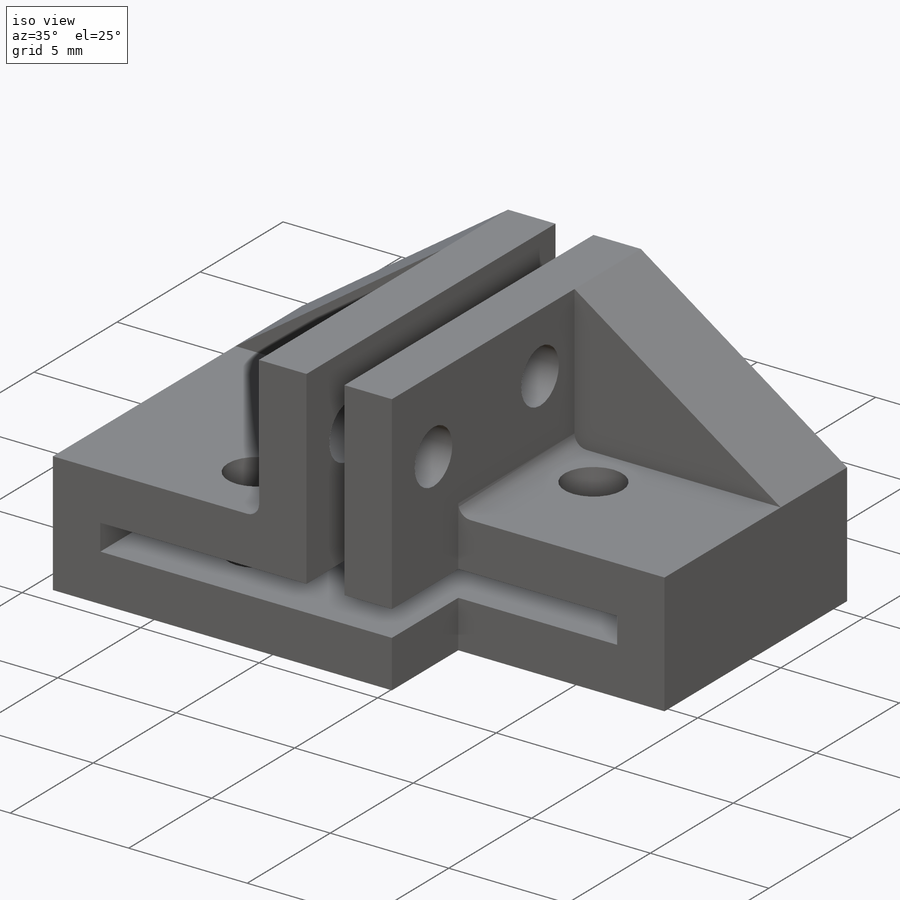
[diagram: iso view]
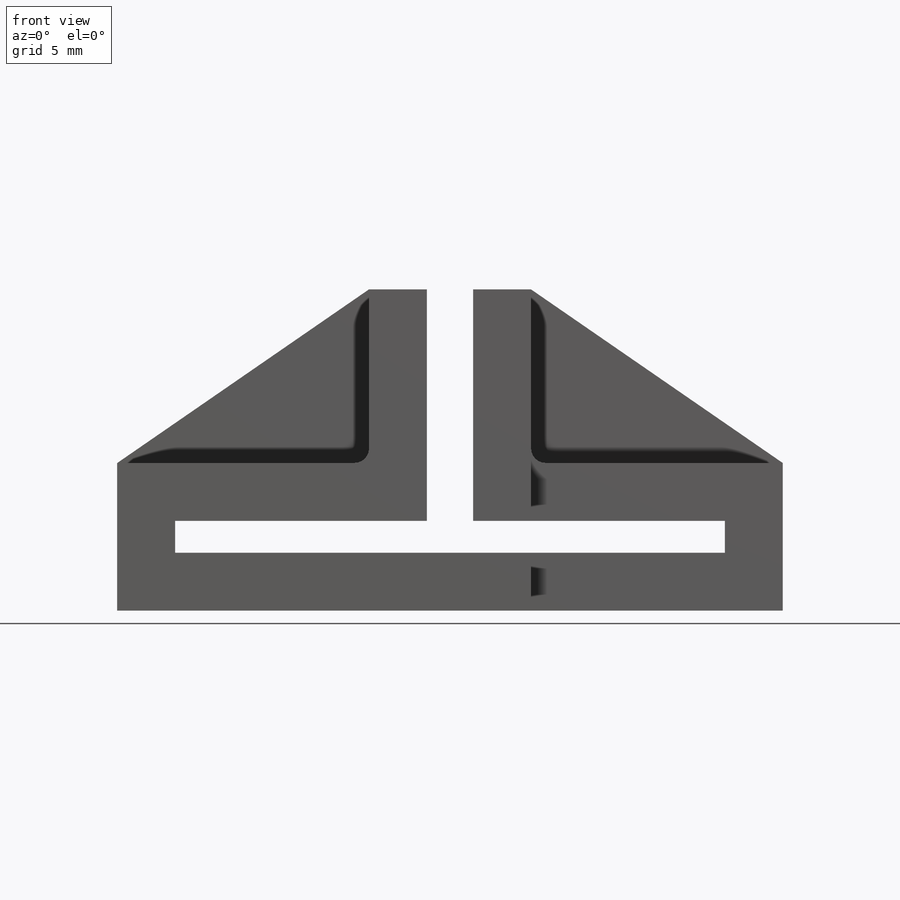
[diagram: front view]
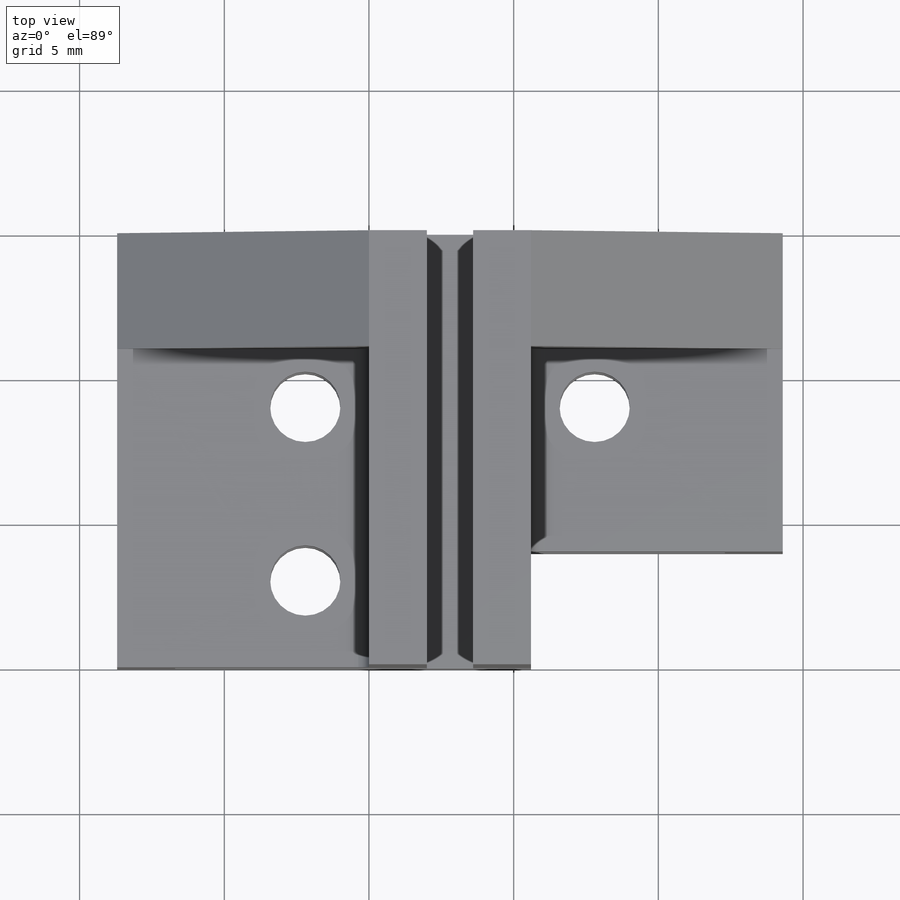
[diagram: top view]
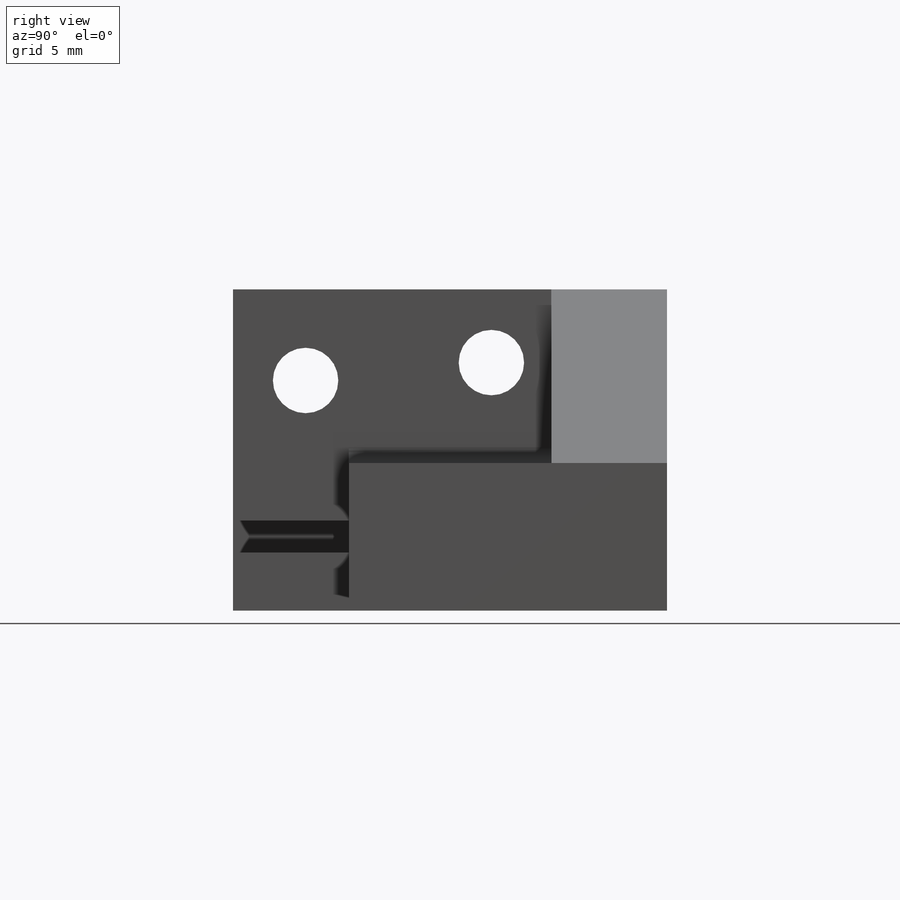
[diagram: right view]
SOLIDWORKS PART (.sldprt)
format: sldprt  version: not decoded by parser v0  size: 290,304 bytes
history: native  units: mm
features: sketch x5, extrude x3, cut_extrude x3, plane x2, material x1, mirror x1, fillet x1 (+13 scaffold rows collapsed)
feature tree (29):
  scaffold x13  (default folders/planes/origin — collapsed)
  material  "Material <not specified>"
  sketch  "Sketch1"  dims[D1=1.1mm D2=2.0mm D3=2.0mm D4=2.0mm D5=19.0mm D6=1.6mm D7=2.0mm D8=2.0mm D9=2.0mm D10=8.0mm]
  extrude  "Boss-Extrude1"  Depth=15mm
  sketch  "Sketch2"  dims[D1=4.0mm]
  cut_extrude  "Cut-Extrude1"  Depth=15mm
  sketch  "Sketch4"
  extrude  "AlignGroup2"  Depth=2.2606mm
  cut_extrude  "Cut-Extrude2"  Depth=15mm
  sketch  "Sketch5"  dims[c1.D2=2.43mm c1.D1=3.0mm c1.D3=6.0mm c1.D4=6.0mm c1.D5=6.5mm c2.D3=6.0mm c2.D1=3.0mm c3.D3=6.0mm c3.D4=6.5mm]
  cut_extrude  "Cut-Extrude3"  Depth=15mm
  plane  "Plane1"  Offset=2mm
  sketch  "Sketch6"
  extrude  "Boss-Extrude2"  Depth=2mm
  plane  "Plane2"
  mirror  "Mirror1"
  fillet  "Fillet2"  Radius=0.5mm
decode coverage: 10 of 13 modeling features carry decoded parameters
note: suppression state not decoded; provenance and decode notes live in map.json
